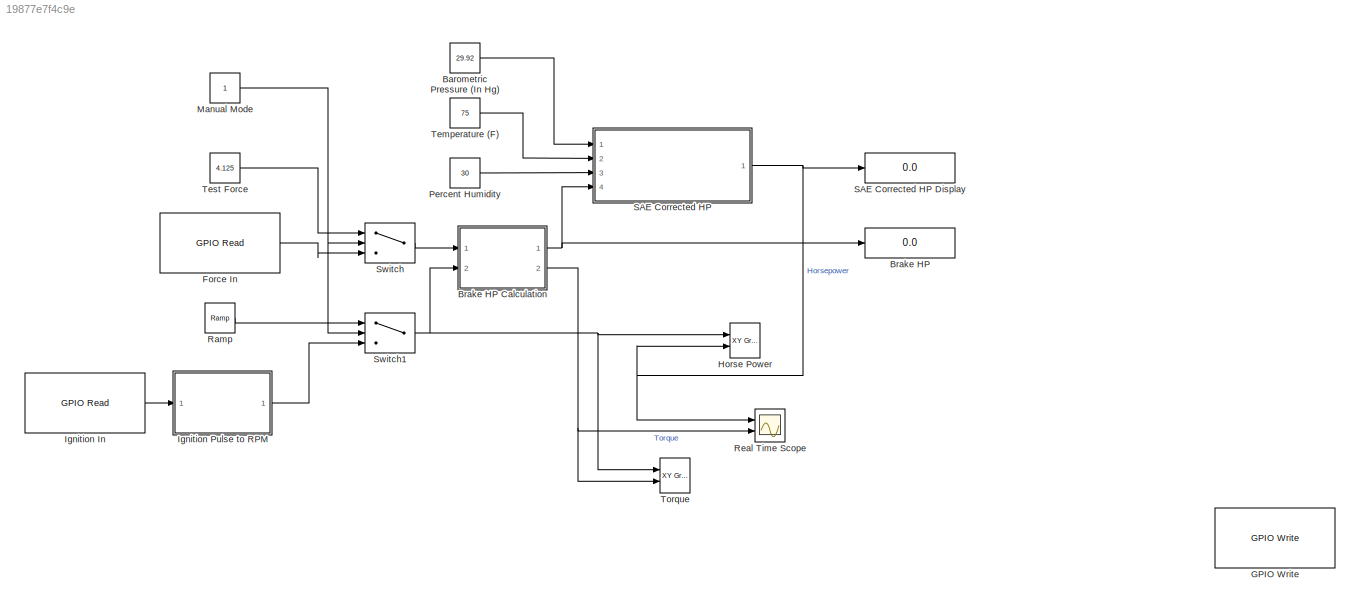
MODEL slx_19877e7f4c9e
KIND model
BLOCK [Constant] Barometric Pressure (In Hg)
  Value = 29.92
BLOCK [Display] Brake HP
  Decimation = 1
  Ports = [1]
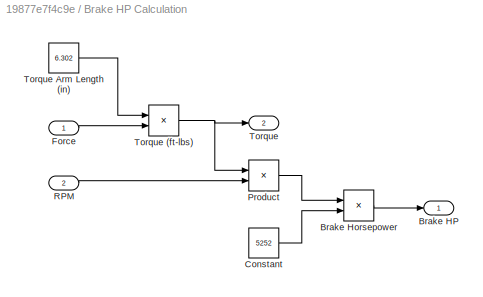
BLOCK [SubSystem] Brake HP Calculation
  Ports = [2, 2]
  RequestExecContextInheritance = off
BLOCK [Outport] Brake HP Calculation/Brake HP
  IconDisplay = Port number
BLOCK [Product] Brake HP Calculation/Brake Horsepower
  InputSameDT = off
  Inputs = */
  OutDataTypeStr = Inherit: Inherit via internal rule
  Ports = [2, 1]
  RndMeth = Floor
  SaturateOnIntegerOverflow = off
BLOCK [Constant] Brake HP Calculation/Constant
  Value = 5252
BLOCK [Inport] Brake HP Calculation/Force
  IconDisplay = Port number
BLOCK [Product] Brake HP Calculation/Product
  InputSameDT = off
  OutDataTypeStr = Inherit: Inherit via internal rule
  Ports = [2, 1]
  RndMeth = Floor
  SaturateOnIntegerOverflow = off
BLOCK [Inport] Brake HP Calculation/RPM
  IconDisplay = Port number
  Port = 2
BLOCK [Outport] Brake HP Calculation/Torque
  IconDisplay = Port number
  Port = 2
BLOCK [Product] Brake HP Calculation/Torque (ft-lbs)
  InputSameDT = off
  OutDataTypeStr = Inherit: Inherit via internal rule
  Ports = [2, 1]
  RndMeth = Floor
  SaturateOnIntegerOverflow = off
BLOCK [Constant] Brake HP Calculation/Torque Arm Length (in)
  Value = 6.302
BLOCK [Reference] Force In  REF=embdlinuxlib/GPIO Read
  Ports = [0, 1]
  SourceBlock = embdlinuxlib/GPIO Read
  SourceType = GPIO Read
  blockPlatform = Raspberry Pi
  board = Model B Rev2
  direction = Input
  gpio = 4
  internalResistor = Off
  sampleTime = 0.001
BLOCK [Reference] GPIO Write  REF=embdlinuxlib/GPIO Write
  Ports = [1]
  SourceBlock = embdlinuxlib/GPIO Write
  SourceType = GPIO Write
  blockPlatform = Raspberry Pi
  board = Model B Rev2
  direction = Output
  gpio = 17
BLOCK [Reference] Horse Power  REF=simulink/Sinks/XY Graph
  Ports = [2]
  SourceBlock = simulink/Sinks/XY Graph
  SourceType = XY scope.
  st = -1
  xmax = 12500
  xmin = 0
  ymax = 200
  ymin = 0
BLOCK [Reference] Ignition In  REF=embdlinuxlib/GPIO Read
  Ports = [0, 1]
  SourceBlock = embdlinuxlib/GPIO Read
  SourceType = GPIO Read
  blockPlatform = Raspberry Pi
  board = Model B Rev2
  direction = Input
  gpio = 9
  internalResistor = Off
  sampleTime = 0.001
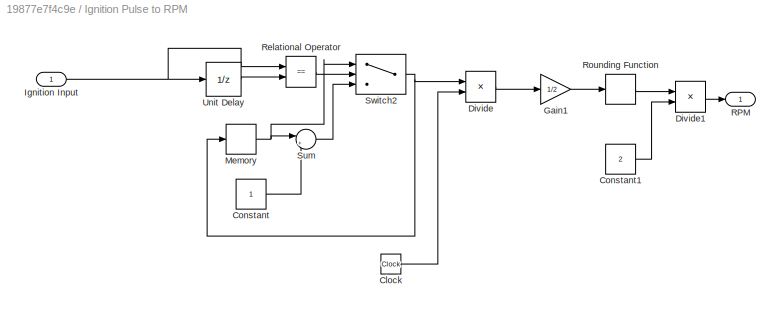
BLOCK [SubSystem] Ignition Pulse to RPM
  Ports = [1, 1]
  RequestExecContextInheritance = off
BLOCK [Clock] Ignition Pulse to RPM/Clock
BLOCK [Constant] Ignition Pulse to RPM/Constant
BLOCK [Constant] Ignition Pulse to RPM/Constant1
  Value = 2
BLOCK [Product] Ignition Pulse to RPM/Divide
  InputSameDT = off
  Inputs = */
  OutDataTypeStr = Inherit: Inherit via internal rule
  Ports = [2, 1]
  RndMeth = Floor
  SaturateOnIntegerOverflow = off
BLOCK [Product] Ignition Pulse to RPM/Divide1
  InputSameDT = off
  Inputs = */
  OutDataTypeStr = Inherit: Inherit via internal rule
  Ports = [2, 1]
  RndMeth = Floor
  SaturateOnIntegerOverflow = off
BLOCK [Gain] Ignition Pulse to RPM/Gain1
  Gain = 1/2
  OutDataTypeStr = Inherit: Inherit via internal rule
  ParamDataTypeStr = Inherit: Inherit via internal rule
  SaturateOnIntegerOverflow = off
BLOCK [Inport] Ignition Pulse to RPM/Ignition Input
  IconDisplay = Port number
BLOCK [Memory] Ignition Pulse to RPM/Memory
BLOCK [Outport] Ignition Pulse to RPM/RPM
  IconDisplay = Port number
BLOCK [RelationalOperator] Ignition Pulse to RPM/Relational Operator
  InputSameDT = off
  Operator = ==
  OutDataTypeStr = boolean
  Ports = [2, 1]
BLOCK [Rounding] Ignition Pulse to RPM/Rounding Function
  Operator = round
BLOCK [Sum] Ignition Pulse to RPM/Sum
  IconShape = round
  InputSameDT = off
  Inputs = |++
  OutDataTypeStr = Inherit: Inherit via internal rule
  Ports = [2, 1]
  SaturateOnIntegerOverflow = off
BLOCK [Switch] Ignition Pulse to RPM/Switch2
  Criteria = u2 > Threshold
  InputSameDT = off
  SaturateOnIntegerOverflow = off
BLOCK [UnitDelay] Ignition Pulse to RPM/Unit Delay
  InputProcessing = Elements as channels (sample based)
  SampleTime = -1
BLOCK [Constant] Manual Mode
BLOCK [Constant] Percent Humidity
  Value = 30
BLOCK [Reference] Ramp  REF=simulink/Sources/Ramp
  Ports = [0, 1]
  SourceBlock = simulink/Sources/Ramp
  SourceType = Ramp
  VectorParams1D = on
  X0 = 1800
  slope = 1700
  start = 0
BLOCK [Scope] Real Time Scope
  DataFormat = StructureWithTime
  Floating = off
  LegendLocations = 0.79476     0.94922     0.16476    0.042273\n0.82954      0.5018     0.13181    0.042273
  NumInputPorts = 2
  Ports = [2]
  SampleTime = 0
  ShowLegends = on
  TimeRange = 1
  YMax = 61~25.9958
  YMin = 52.5~25.9957
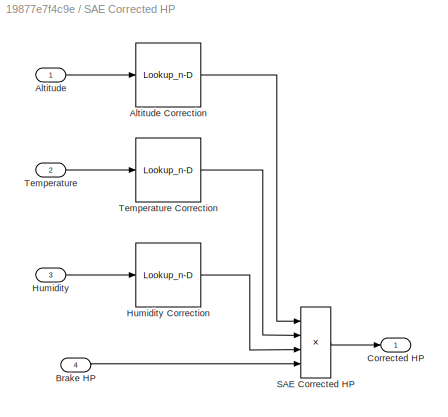
BLOCK [SubSystem] SAE Corrected HP
  Ports = [4, 1]
  RequestExecContextInheritance = off
BLOCK [Display] SAE Corrected HP Display
  Decimation = 1
  Ports = [1]
BLOCK [Inport] SAE Corrected HP/Altitude
  IconDisplay = Port number
BLOCK [Lookup_n-D] SAE Corrected HP/Altitude Correction
  BreakpointsForDimension1 = [19.03,19.79,20.58,21.38,22.22,23.09,23.98,24.89,25.84,26.81,27.82,28.86,29.92,30,30.1,30.20]
  InternalRulePriority = Speed
  NumberOfTableDimensions = 1
  Ports = [1, 1]
  RndMeth = Simplest
  Table = [1.57,1.514,1.455,1.4,1.345,1.295,1.249,1.2,1.158,1.115,1.072,1.035,1,.9975,.994,0.9910]
BLOCK [Inport] SAE Corrected HP/Brake HP
  IconDisplay = Port number
  Port = 4
BLOCK [Outport] SAE Corrected HP/Corrected HP
  IconDisplay = Port number
BLOCK [Inport] SAE Corrected HP/Humidity
  IconDisplay = Port number
  Port = 3
BLOCK [Lookup_n-D] SAE Corrected HP/Humidity Correction
  BreakpointsForDimension1 = [10,20,30,40,50,60,70,80,90,100]
  InternalRulePriority = Speed
  NumberOfTableDimensions = 1
  Ports = [1, 1]
  RndMeth = Simplest
  Table = [1.008,1.015,1.02,1.028,1.035,1.04,1.048,1.055,1.062,1.07]
BLOCK [Product] SAE Corrected HP/SAE Corrected HP
  InputSameDT = off
  Inputs = 4
  OutDataTypeStr = Inherit: Inherit via internal rule
  Ports = [4, 1]
  RndMeth = Floor
  SaturateOnIntegerOverflow = off
BLOCK [Inport] SAE Corrected HP/Temperature
  IconDisplay = Port number
  Port = 2
BLOCK [Lookup_n-D] SAE Corrected HP/Temperature Correction
  BreakpointsForDimension1 = [30,60,70,80,90,100,110,120,130,140,150,160,170,180,190,200]
  InternalRulePriority = Speed
  NumberOfTableDimensions = 1
  Ports = [1, 1]
  RndMeth = Simplest
  Table = [.972,1.00,1.010,1.018,1.028,1.037,1.046,1.056,1.065,1.074,1.083,1.092,1.101,1.110,1.118,1.126]
BLOCK [Switch] Switch
  Criteria = u2 > Threshold
  InputSameDT = off
  SaturateOnIntegerOverflow = off
BLOCK [Switch] Switch1
  Criteria = u2 > Threshold
  InputSameDT = off
  SaturateOnIntegerOverflow = off
BLOCK [Constant] Temperature (F)
  Value = 75
BLOCK [Constant] Test Force
  Value = 4.125
BLOCK [Reference] Torque  REF=simulink/Sinks/XY Graph
  Ports = [2]
  SourceBlock = simulink/Sinks/XY Graph
  SourceType = XY scope.
  st = -1
  xmax = 12500
  xmin = 0
  ymax = 100
  ymin = 0
LINE Barometric Pressure (In Hg):1 -> SAE Corrected HP:1
LINE Brake HP Calculation/Brake Horsepower:1 -> Brake HP Calculation/Brake HP:1
LINE Brake HP Calculation/Constant:1 -> Brake HP Calculation/Brake Horsepower:2
LINE Brake HP Calculation/Force:1 -> Brake HP Calculation/Torque (ft-lbs):2
LINE Brake HP Calculation/Product:1 -> Brake HP Calculation/Brake Horsepower:1
LINE Brake HP Calculation/RPM:1 -> Brake HP Calculation/Product:2
NET Brake HP Calculation/Torque (ft-lbs):1 -> Brake HP Calculation/Product:1, Brake HP Calculation/Torque:1
LINE Brake HP Calculation/Torque Arm Length (in):1 -> Brake HP Calculation/Torque (ft-lbs):1
NET Brake HP Calculation:1 -> Brake HP:1, SAE Corrected HP:4
NET Brake HP Calculation:2 -> Real Time Scope:2, Torque:2
LINE Force In:1 -> Switch:3
LINE Ignition In:1 -> Ignition Pulse to RPM:1
LINE Ignition Pulse to RPM/Clock:1 -> Ignition Pulse to RPM/Divide:2
LINE Ignition Pulse to RPM/Constant1:1 -> Ignition Pulse to RPM/Divide1:2
LINE Ignition Pulse to RPM/Constant:1 -> Ignition Pulse to RPM/Sum:2
LINE Ignition Pulse to RPM/Divide1:1 -> Ignition Pulse to RPM/RPM:1
LINE Ignition Pulse to RPM/Divide:1 -> Ignition Pulse to RPM/Gain1:1
LINE Ignition Pulse to RPM/Gain1:1 -> Ignition Pulse to RPM/Rounding Function:1
NET Ignition Pulse to RPM/Ignition Input:1 -> Ignition Pulse to RPM/Relational Operator:1, Ignition Pulse to RPM/Unit Delay:1
NET Ignition Pulse to RPM/Memory:1 -> Ignition Pulse to RPM/Sum:1, Ignition Pulse to RPM/Switch2:1
LINE Ignition Pulse to RPM/Relational Operator:1 -> Ignition Pulse to RPM/Switch2:2
LINE Ignition Pulse to RPM/Rounding Function:1 -> Ignition Pulse to RPM/Divide1:1
LINE Ignition Pulse to RPM/Sum:1 -> Ignition Pulse to RPM/Switch2:3
NET Ignition Pulse to RPM/Switch2:1 -> Ignition Pulse to RPM/Divide:1, Ignition Pulse to RPM/Memory:1
LINE Ignition Pulse to RPM/Unit Delay:1 -> Ignition Pulse to RPM/Relational Operator:2
LINE Ignition Pulse to RPM:1 -> Switch1:3
NET Manual Mode:1 -> Switch1:2, Switch:2
LINE Percent Humidity:1 -> SAE Corrected HP:3
LINE Ramp:1 -> Switch1:1
LINE SAE Corrected HP/Altitude Correction:1 -> SAE Corrected HP/SAE Corrected HP:1
LINE SAE Corrected HP/Altitude:1 -> SAE Corrected HP/Altitude Correction:1
LINE SAE Corrected HP/Brake HP:1 -> SAE Corrected HP/SAE Corrected HP:4
LINE SAE Corrected HP/Humidity Correction:1 -> SAE Corrected HP/SAE Corrected HP:3
LINE SAE Corrected HP/Humidity:1 -> SAE Corrected HP/Humidity Correction:1
LINE SAE Corrected HP/SAE Corrected HP:1 -> SAE Corrected HP/Corrected HP:1
LINE SAE Corrected HP/Temperature Correction:1 -> SAE Corrected HP/SAE Corrected HP:2
LINE SAE Corrected HP/Temperature:1 -> SAE Corrected HP/Temperature Correction:1
NET SAE Corrected HP:1 -> Horse Power:2, Real Time Scope:1, SAE Corrected HP Display:1
NET Switch1:1 -> Brake HP Calculation:2, Horse Power:1, Torque:1
LINE Switch:1 -> Brake HP Calculation:1
LINE Temperature (F):1 -> SAE Corrected HP:2
LINE Test Force:1 -> Switch:1
note: NET lines group one-source signal fan-out (src -> all destinations, sorted); 1:1 wires keep LINE
